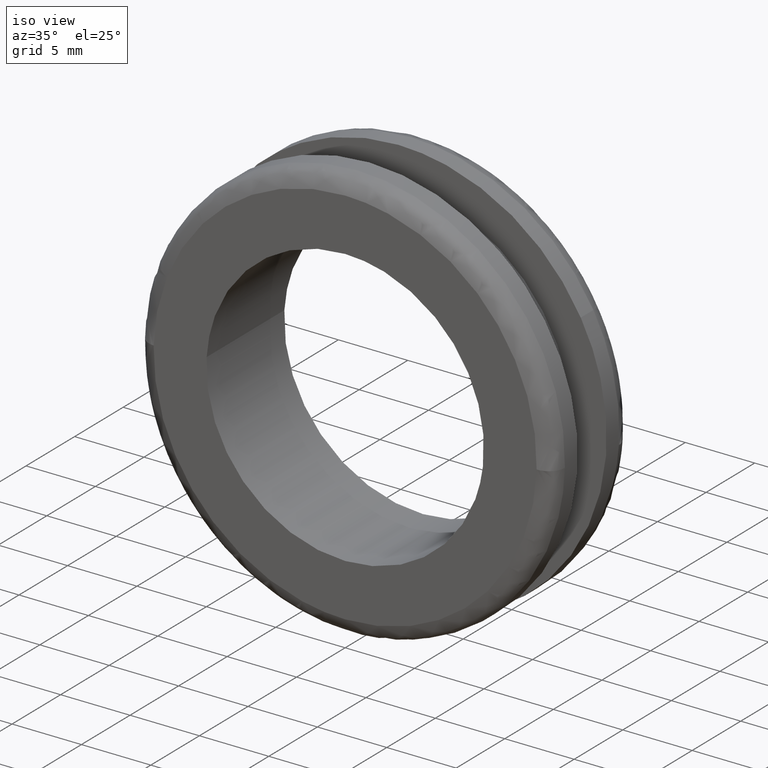
[diagram: clean part render]
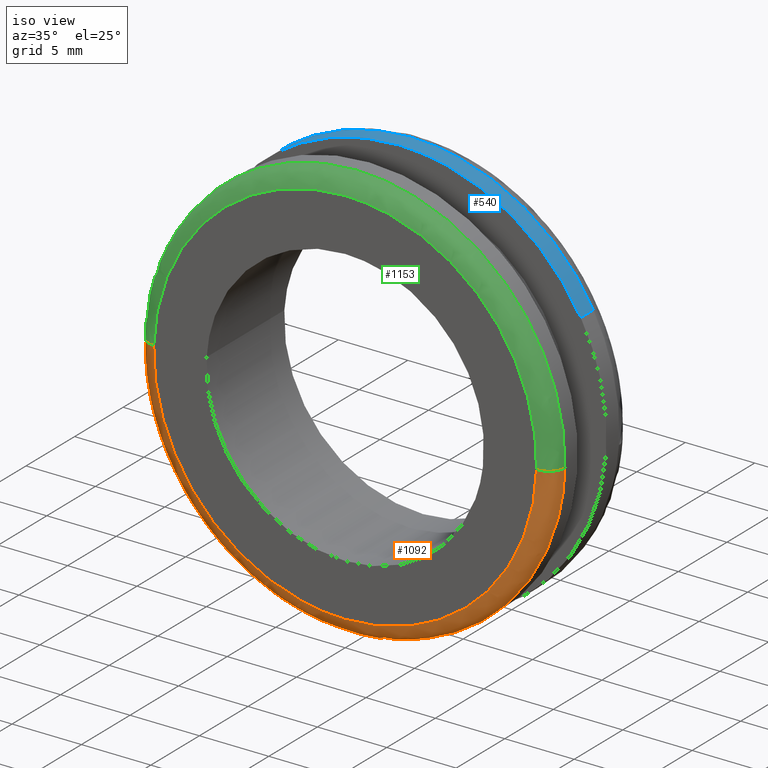
[diagram: same view with three faces highlighted in distinct colors, each labeled with its STEP entity id]
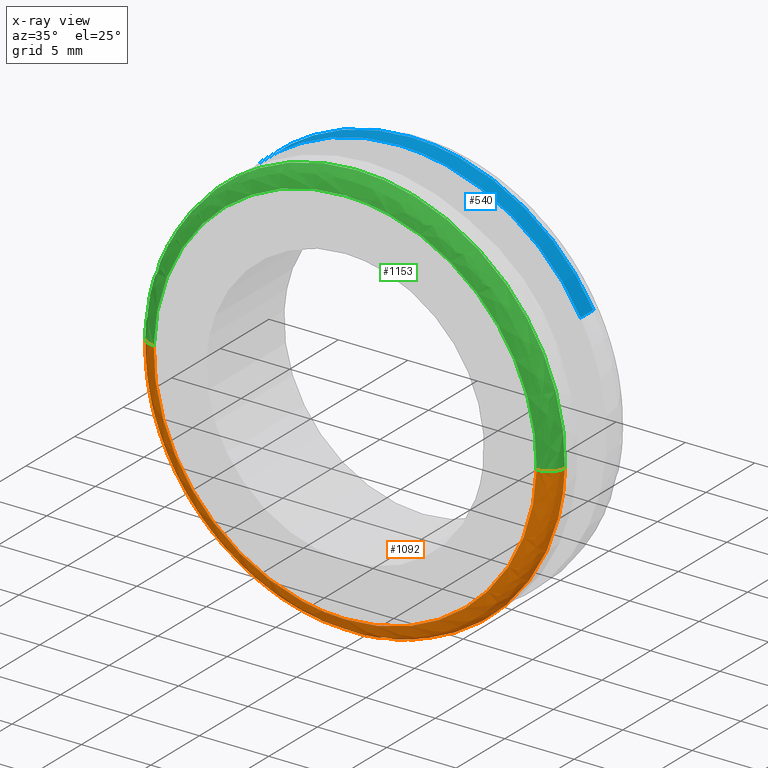
[diagram: x-ray of the same camera — body ghosted, the three highlighted faces saturated]
A machine part, iso view with three faces highlighted in distinct colors.
The next image is the same camera in x-ray (body ghosted, the three faces saturated) — at least one of them is partly hidden behind the body in this view.
Their STEP definitions:

[orange] entity #1092 — the highlighted face is a freeform B-spline surface patch.
#137=CARTESIAN_POINT('',(14.995262839249479,1.199999999917460,-0.376951431650665));
#138=VERTEX_POINT('',#137);
#154=CARTESIAN_POINT('',(0.0,1.200000000000000,-15.0));
#155=VERTEX_POINT('',#154);
#156=CARTESIAN_POINT('',(0.0,1.200000000000000,-15.0));
#157=CARTESIAN_POINT('',(14.627668142708558,1.200000000000000,-15.000000000000007));
#158=CARTESIAN_POINT('',(14.995262839249484,1.199999999917460,-0.376951431650665));
#166=(BOUNDED_CURVE()B_SPLINE_CURVE(2,(#156,#157,#158),.UNSPECIFIED.,.F.,.U.)B_SPLINE_CURVE_WITH_KNOTS((3,3),(0.0,0.245579891769793),.UNSPECIFIED.)CURVE()GEOMETRIC_REPRESENTATION_ITEM()RATIONAL_B_SPLINE_CURVE((1.0,0.712285260094744,0.989826157681544))REPRESENTATION_ITEM(''));
#167=EDGE_CURVE('',#155,#138,#166,.T.);
#169=CARTESIAN_POINT('',(-9.815094365530444,1.200000000000000,-11.343012060106970));
#170=VERTEX_POINT('',#169);
#171=CARTESIAN_POINT('',(-9.815094365530444,1.199999999999999,-11.343012060106965));
#172=CARTESIAN_POINT('',(-5.588822016142505,1.200000000000000,-15.000000000000005));
#173=CARTESIAN_POINT('',(0.0,1.200000000000000,-15.0));
#181=(BOUNDED_CURVE()B_SPLINE_CURVE(2,(#171,#172,#173),.UNSPECIFIED.,.F.,.U.)B_SPLINE_CURVE_WITH_KNOTS((3,3),(0.885882132988790,1.0),.UNSPECIFIED.)CURVE()GEOMETRIC_REPRESENTATION_ITEM()RATIONAL_B_SPLINE_CURVE((0.854663299542762,0.866302602427844,1.0))REPRESENTATION_ITEM(''));
#182=EDGE_CURVE('',#170,#155,#181,.T.);
#226=CARTESIAN_POINT('',(-14.995262839249479,1.199999999917460,0.376951431650666));
#227=VERTEX_POINT('',#226);
#228=CARTESIAN_POINT('',(-14.995262839249481,1.199999999917460,0.376951431650666));
#229=CARTESIAN_POINT('',(-15.000000000000002,1.200000000000000,0.188505481851298));
#230=CARTESIAN_POINT('',(-15.0,1.200000000000000,-1.928755E-016));
#231=CARTESIAN_POINT('',(-14.999999999999996,1.200000000000000,-6.856519991633413));
#232=CARTESIAN_POINT('',(-9.815094365530444,1.200000000000000,-11.343012060106965));
#240=(BOUNDED_CURVE()B_SPLINE_CURVE(2,(#228,#229,#230,#231,#232),.UNSPECIFIED.,.F.,.U.)B_SPLINE_CURVE_WITH_KNOTS((3,2,3),(0.745579891769793,0.750000000000000,0.885882132988790),.UNSPECIFIED.)CURVE()GEOMETRIC_REPRESENTATION_ITEM()RATIONAL_B_SPLINE_CURVE((0.989826157681544,0.994821521091804,1.0,0.840804178758702,0.854663299542762))REPRESENTATION_ITEM(''));
#241=EDGE_CURVE('',#227,#170,#240,.T.);
#1004=CARTESIAN_POINT('',(-14.992343321176696,1.283669157627015,0.376878040704598));
#1005=CARTESIAN_POINT('',(-15.369221361881287,1.283669157627015,-14.615465280472083));
#1006=CARTESIAN_POINT('',(-0.376878040704602,1.283669157627015,-14.992343321176696));
#1007=CARTESIAN_POINT('',(14.615465280472083,1.283669157627015,-15.369221361881289));
#1008=CARTESIAN_POINT('',(14.992343321176696,1.283669157627015,-0.376878040704603));
#1009=CARTESIAN_POINT('',(-15.088520613426805,-0.092802714251392,0.379295748776444));
#1010=CARTESIAN_POINT('',(-15.467816362203257,-0.092802714251392,-14.709224864650361));
#1011=CARTESIAN_POINT('',(-0.379295748776448,-0.092802714251392,-15.088520613426805));
#1012=CARTESIAN_POINT('',(14.709224864650361,-0.092802714251392,-15.467816362203257));
#1013=CARTESIAN_POINT('',(15.088520613426805,-0.092802714251392,-0.379295748776449));
#1014=CARTESIAN_POINT('',(-13.712447503820707,0.002889172482517,0.344703975742398));
#1015=CARTESIAN_POINT('',(-14.057151479563114,0.002889172482517,-13.367743528078305));
#1016=CARTESIAN_POINT('',(-0.344703975742402,0.002889172482517,-13.712447503820707));
#1017=CARTESIAN_POINT('',(13.367743528078305,0.002889172482517,-14.057151479563114));
#1018=CARTESIAN_POINT('',(13.712447503820707,0.002889172482517,-0.344703975742403));
#1026=(BOUNDED_SURFACE()B_SPLINE_SURFACE(2,2,((#1004,#1009,#1014),(#1005,#1010,#1015),(#1006,#1011,#1016),(#1007,#1012,#1017),(#1008,#1013,#1018)),.UNSPECIFIED.,.F.,.F.,.U.)B_SPLINE_SURFACE_WITH_KNOTS((3,2,3),(3,3),(0.0,24.847974998333068,49.695949996666130),(0.0,2.186844435827837),.UNSPECIFIED.)GEOMETRIC_REPRESENTATION_ITEM()RATIONAL_B_SPLINE_SURFACE(((0.910892988213902,0.599412927365441,0.915966586659385),(0.644098608901328,0.423848945670983,0.647686184767146),(0.910892988213902,0.599412927365441,0.915966586659385),(0.644098608901328,0.423848945670983,0.647686184767146),(0.910892988213902,0.599412927365441,0.915966586659385)))REPRESENTATION_ITEM('')SURFACE());
#1027=ORIENTED_EDGE('',*,*,#241,.T.);
#1028=ORIENTED_EDGE('',*,*,#182,.T.);
#1029=ORIENTED_EDGE('',*,*,#167,.T.);
#1030=CARTESIAN_POINT('',(13.795641812970359,-1.001942E-015,-0.346795317177242));
#1031=VERTEX_POINT('',#1030);
#1032=CARTESIAN_POINT('',(14.995262839249483,1.199999999917460,-0.376951431650665));
#1033=CARTESIAN_POINT('',(14.995262839084466,1.724079E-009,-0.376951431645913));
#1034=CARTESIAN_POINT('',(13.795641812970361,-1.001942E-015,-0.346795317177242));
#1042=(BOUNDED_CURVE()B_SPLINE_CURVE(2,(#1032,#1033,#1034),.UNSPECIFIED.,.F.,.U.)B_SPLINE_CURVE_WITH_KNOTS((3,3),(-1.723441281843132,-0.263586880414795),.UNSPECIFIED.)CURVE()GEOMETRIC_REPRESENTATION_ITEM()RATIONAL_B_SPLINE_CURVE((0.883897567088745,0.626638727524983,0.888510408529080))REPRESENTATION_ITEM(''));
#1043=EDGE_CURVE('',#138,#1031,#1042,.T.);
#1044=ORIENTED_EDGE('',*,*,#1043,.T.);
#1045=CARTESIAN_POINT('',(0.0,-2.534935E-015,-13.800000000000001));
#1046=VERTEX_POINT('',#1045);
#1047=CARTESIAN_POINT('',(0.0,-2.534935E-015,-13.800000000000001));
#1048=CARTESIAN_POINT('',(13.457454691219727,-2.534935E-015,-13.799999999999999));
#1049=CARTESIAN_POINT('',(13.795641812970366,-1.001942E-015,-0.346795317177242));
#1057=(BOUNDED_CURVE()B_SPLINE_CURVE(2,(#1047,#1048,#1049),.UNSPECIFIED.,.F.,.U.)B_SPLINE_CURVE_WITH_KNOTS((3,3),(0.0,0.245579891768856),.UNSPECIFIED.)CURVE()GEOMETRIC_REPRESENTATION_ITEM()RATIONAL_B_SPLINE_CURVE((1.0,0.712285260095842,0.989826157679425))REPRESENTATION_ITEM(''));
#1058=EDGE_CURVE('',#1046,#1031,#1057,.T.);
#1059=ORIENTED_EDGE('',*,*,#1058,.F.);
#1060=CARTESIAN_POINT('',(-13.795641812970359,-1.033180E-015,0.346795317177241));
#1061=VERTEX_POINT('',#1060);
#1062=CARTESIAN_POINT('',(-13.795641812970363,-1.033180E-015,0.346795317177241));
#1063=CARTESIAN_POINT('',(-13.799999999999995,-2.534935E-015,0.173425043340176));
#1064=CARTESIAN_POINT('',(-13.800000000000001,-2.534935E-015,-1.928755E-016));
#1065=CARTESIAN_POINT('',(-13.799999999999999,-2.534935E-015,-13.799999999999999));
#1066=CARTESIAN_POINT('',(0.0,-2.534935E-015,-13.800000000000001));
#1074=(BOUNDED_CURVE()B_SPLINE_CURVE(2,(#1062,#1063,#1064,#1065,#1066),.UNSPECIFIED.,.F.,.U.)B_SPLINE_CURVE_WITH_KNOTS((3,2,3),(0.745579891768856,0.750000000000000,1.0),.UNSPECIFIED.)CURVE()GEOMETRIC_REPRESENTATION_ITEM()RATIONAL_B_SPLINE_CURVE((0.989826157679425,0.994821521090705,1.0,0.707106781186548,1.0))REPRESENTATION_ITEM(''));
#1075=EDGE_CURVE('',#1061,#1046,#1074,.T.);
#1076=ORIENTED_EDGE('',*,*,#1075,.F.);
#1077=CARTESIAN_POINT('',(-14.995262839249481,1.199999999917460,0.376951431650666));
#1078=CARTESIAN_POINT('',(-14.995262839084466,1.724075E-009,0.376951431645915));
#1079=CARTESIAN_POINT('',(-13.795641812970365,-1.033180E-015,0.346795317177241));
#1087=(BOUNDED_CURVE()B_SPLINE_CURVE(2,(#1077,#1078,#1079),.UNSPECIFIED.,.F.,.U.)B_SPLINE_CURVE_WITH_KNOTS((3,3),(-1.723441281843132,-0.263586880414791),.UNSPECIFIED.)CURVE()GEOMETRIC_REPRESENTATION_ITEM()RATIONAL_B_SPLINE_CURVE((0.883897567088745,0.626638727524982,0.888510408529082))REPRESENTATION_ITEM(''));
#1088=EDGE_CURVE('',#227,#1061,#1087,.T.);
#1089=ORIENTED_EDGE('',*,*,#1088,.F.);
#1090=EDGE_LOOP('',(#1027,#1028,#1029,#1044,#1059,#1076,#1089));
#1091=FACE_OUTER_BOUND('',#1090,.T.);
#1092=ADVANCED_FACE('',(#1091),#1026,.T.);

[blue] entity #540 — the highlighted face is a freeform B-spline surface patch.
#446=CARTESIAN_POINT('',(13.124196411646949,6.832500000077928,7.263295983815689));
#447=CARTESIAN_POINT('',(12.262045365414053,6.832500000077928,8.821134146060496));
#448=CARTESIAN_POINT('',(11.059160052151860,6.832500000077928,10.133853114234901));
#449=CARTESIAN_POINT('',(0.925306937916956,6.832500000077928,21.193013166386756));
#450=CARTESIAN_POINT('',(-10.133853114234901,6.832500000077928,11.059160052151860));
#451=CARTESIAN_POINT('',(13.124196411646949,5.466687499997949,7.263295983815689));
#452=CARTESIAN_POINT('',(12.262045365414053,5.466687499997949,8.821134146060496));
#453=CARTESIAN_POINT('',(11.059160052151860,5.466687499997948,10.133853114234901));
#454=CARTESIAN_POINT('',(0.925306937916956,5.466687499997948,21.193013166386756));
#455=CARTESIAN_POINT('',(-10.133853114234901,5.466687499997948,11.059160052151860));
#463=(BOUNDED_SURFACE()B_SPLINE_SURFACE(2,1,((#446,#451),(#447,#452),(#448,#453),(#449,#454),(#450,#455)),.UNSPECIFIED.,.F.,.F.,.U.)B_SPLINE_SURFACE_WITH_KNOTS((3,2,3),(2,2),(0.0,3.976450198781717,28.829263941167412),(0.0,1.0),.UNSPECIFIED.)GEOMETRIC_REPRESENTATION_ITEM()RATIONAL_B_SPLINE_SURFACE(((0.921270302782944,0.921270302782944),(0.953137084989848,0.953137084989848),(1.0,1.0),(0.707106781186548,0.707106781186548),(1.0,1.0)))REPRESENTATION_ITEM('')SURFACE());
#464=CARTESIAN_POINT('',(13.124197754834460,6.800000000000095,7.263293556781960));
#465=VERTEX_POINT('',#464);
#466=CARTESIAN_POINT('',(0.0,6.800000000000000,15.0));
#467=VERTEX_POINT('',#466);
#468=CARTESIAN_POINT('',(13.124197754834459,6.800000000000095,7.263293556781960));
#469=CARTESIAN_POINT('',(8.842490704280804,6.800000000000002,14.999999999999998));
#470=CARTESIAN_POINT('',(0.0,6.800000000000000,15.0));
#478=(BOUNDED_CURVE()B_SPLINE_CURVE(2,(#468,#469,#470),.UNSPECIFIED.,.F.,.U.)B_SPLINE_CURVE_WITH_KNOTS((3,3),(0.332484260513294,0.500000000000000),.UNSPECIFIED.)CURVE()GEOMETRIC_REPRESENTATION_ITEM()RATIONAL_B_SPLINE_CURVE((0.870495160132448,0.803743103439291,1.0))REPRESENTATION_ITEM(''));
#479=EDGE_CURVE('',#465,#467,#478,.T.);
#480=ORIENTED_EDGE('',*,*,#479,.T.);
#481=CARTESIAN_POINT('',(-10.133852503868869,6.800000000020198,11.059160611448180));
#482=VERTEX_POINT('',#481);
#483=CARTESIAN_POINT('',(0.0,6.800000000000000,15.0));
#484=CARTESIAN_POINT('',(-5.833180024734737,6.800000000000001,15.0));
#485=CARTESIAN_POINT('',(-10.133852503868875,6.800000000020199,11.059160611448178));
#493=(BOUNDED_CURVE()B_SPLINE_CURVE(2,(#483,#484,#485),.UNSPECIFIED.,.F.,.U.)B_SPLINE_CURVE_WITH_KNOTS((3,3),(0.500000000000000,0.618415192420787),.UNSPECIFIED.)CURVE()GEOMETRIC_REPRESENTATION_ITEM()RATIONAL_B_SPLINE_CURVE((1.0,0.861267972541846,0.853959782894757))REPRESENTATION_ITEM(''));
#494=EDGE_CURVE('',#467,#482,#493,.T.);
#495=ORIENTED_EDGE('',*,*,#494,.T.);
#496=CARTESIAN_POINT('',(-10.133852520110439,5.499999999999900,11.059160596566571));
#497=VERTEX_POINT('',#496);
#498=CARTESIAN_POINT('',(-10.133852503868869,6.800000000020198,11.059160611448180));
#499=CARTESIAN_POINT('',(-10.133852520110439,5.499999999999900,11.059160596566571));
#500=QUASI_UNIFORM_CURVE('',1,(#498,#499),.UNSPECIFIED.,.F.,.U.);
#501=EDGE_CURVE('',#482,#497,#500,.T.);
#502=ORIENTED_EDGE('',*,*,#501,.T.);
#503=CARTESIAN_POINT('',(0.0,5.499999999999900,15.0));
#504=VERTEX_POINT('',#503);
#505=CARTESIAN_POINT('',(0.0,5.499999999999900,15.0));
#506=CARTESIAN_POINT('',(-5.833180050095272,5.499999999999901,14.999999999999996));
#507=CARTESIAN_POINT('',(-10.133852520110443,5.499999999999900,11.059160596566569));
#515=(BOUNDED_CURVE()B_SPLINE_CURVE(2,(#505,#506,#507),.UNSPECIFIED.,.F.,.U.)B_SPLINE_CURVE_WITH_KNOTS((3,3),(0.500000000000000,0.618415192864190),.UNSPECIFIED.)CURVE()GEOMETRIC_REPRESENTATION_ITEM()RATIONAL_B_SPLINE_CURVE((1.0,0.861267972022367,0.853959782840026))REPRESENTATION_ITEM(''));
#516=EDGE_CURVE('',#504,#497,#515,.T.);
#517=ORIENTED_EDGE('',*,*,#516,.F.);
#518=CARTESIAN_POINT('',(13.124197648995480,5.499999999999899,7.263293748024724));
#519=VERTEX_POINT('',#518);
#520=CARTESIAN_POINT('',(13.124197648995473,5.499999999999899,7.263293748024724));
#521=CARTESIAN_POINT('',(8.842490557013848,5.499999999999900,15.000000000000007));
#522=CARTESIAN_POINT('',(0.0,5.499999999999900,15.0));
#530=(BOUNDED_CURVE()B_SPLINE_CURVE(2,(#520,#521,#522),.UNSPECIFIED.,.F.,.U.)B_SPLINE_CURVE_WITH_KNOTS((3,3),(0.332484262755645,0.500000000000000),.UNSPECIFIED.)CURVE()GEOMETRIC_REPRESENTATION_ITEM()RATIONAL_B_SPLINE_CURVE((0.870495158345373,0.803743106066369,1.0))REPRESENTATION_ITEM(''));
#531=EDGE_CURVE('',#519,#504,#530,.T.);
#532=ORIENTED_EDGE('',*,*,#531,.F.);
#533=CARTESIAN_POINT('',(13.124197754834460,6.800000000000095,7.263293556781960));
#534=CARTESIAN_POINT('',(13.124197648995480,5.499999999999899,7.263293748024724));
#535=QUASI_UNIFORM_CURVE('',1,(#533,#534),.UNSPECIFIED.,.F.,.U.);
#536=EDGE_CURVE('',#465,#519,#535,.T.);
#537=ORIENTED_EDGE('',*,*,#536,.F.);
#538=EDGE_LOOP('',(#480,#495,#502,#517,#532,#537));
#539=FACE_OUTER_BOUND('',#538,.T.);
#540=ADVANCED_FACE('',(#539),#463,.T.);

[green] entity #1153 — the highlighted face is a freeform B-spline surface patch.
#115=CARTESIAN_POINT('',(-10.133852493038910,1.199999999977785,11.059160621372980));
#116=VERTEX_POINT('',#115);
#122=CARTESIAN_POINT('',(0.0,1.200000000000000,15.0));
#123=VERTEX_POINT('',#122);
#124=CARTESIAN_POINT('',(0.0,1.200000000000000,15.0));
#125=CARTESIAN_POINT('',(-5.833180007824203,1.200000000000000,15.0));
#126=CARTESIAN_POINT('',(-10.133852493038908,1.199999999977785,11.059160621372975));
#134=(BOUNDED_CURVE()B_SPLINE_CURVE(2,(#124,#125,#126),.UNSPECIFIED.,.F.,.U.)B_SPLINE_CURVE_WITH_KNOTS((3,3),(0.500000000000000,0.618415192125123),.UNSPECIFIED.)CURVE()GEOMETRIC_REPRESENTATION_ITEM()RATIONAL_B_SPLINE_CURVE((1.0,0.861267972888237,0.853959782931252))REPRESENTATION_ITEM(''));
#135=EDGE_CURVE('',#123,#116,#134,.T.);
#137=CARTESIAN_POINT('',(14.995262839249479,1.199999999917460,-0.376951431650665));
#138=VERTEX_POINT('',#137);
#139=CARTESIAN_POINT('',(14.995262839249481,1.199999999917460,-0.376951431650665));
#140=CARTESIAN_POINT('',(15.000000000000002,1.200000000000000,-0.188505481851297));
#141=CARTESIAN_POINT('',(15.0,1.200000000000000,-1.928755E-016));
#142=CARTESIAN_POINT('',(14.999999999999996,1.200000000000000,14.999999999999996));
#143=CARTESIAN_POINT('',(0.0,1.200000000000000,15.0));
#151=(BOUNDED_CURVE()B_SPLINE_CURVE(2,(#139,#140,#141,#142,#143),.UNSPECIFIED.,.F.,.U.)B_SPLINE_CURVE_WITH_KNOTS((3,2,3),(0.245579891769794,0.250000000000000,0.500000000000000),.UNSPECIFIED.)CURVE()GEOMETRIC_REPRESENTATION_ITEM()RATIONAL_B_SPLINE_CURVE((0.989826157681544,0.994821521091804,1.0,0.707106781186547,1.0))REPRESENTATION_ITEM(''));
#152=EDGE_CURVE('',#138,#123,#151,.T.);
#226=CARTESIAN_POINT('',(-14.995262839249479,1.199999999917460,0.376951431650666));
#227=VERTEX_POINT('',#226);
#243=CARTESIAN_POINT('',(-10.133852493038908,1.199999999977785,11.059160621372975));
#244=CARTESIAN_POINT('',(-14.835023439329238,1.199999999953440,6.751332100486773));
#245=CARTESIAN_POINT('',(-14.995262839249481,1.199999999917460,0.376951431650666));
#253=(BOUNDED_CURVE()B_SPLINE_CURVE(2,(#243,#244,#245),.UNSPECIFIED.,.F.,.U.)B_SPLINE_CURVE_WITH_KNOTS((3,3),(0.618415192125124,0.745579891769794),.UNSPECIFIED.)CURVE()GEOMETRIC_REPRESENTATION_ITEM()RATIONAL_B_SPLINE_CURVE((0.853959782931252,0.846111602607868,0.989826157681545))REPRESENTATION_ITEM(''));
#254=EDGE_CURVE('',#116,#227,#253,.T.);
#1030=CARTESIAN_POINT('',(13.795641812970359,-1.001942E-015,-0.346795317177242));
#1031=VERTEX_POINT('',#1030);
#1032=CARTESIAN_POINT('',(14.995262839249483,1.199999999917460,-0.376951431650665));
#1033=CARTESIAN_POINT('',(14.995262839084466,1.724079E-009,-0.376951431645913));
#1034=CARTESIAN_POINT('',(13.795641812970361,-1.001942E-015,-0.346795317177242));
#1042=(BOUNDED_CURVE()B_SPLINE_CURVE(2,(#1032,#1033,#1034),.UNSPECIFIED.,.F.,.U.)B_SPLINE_CURVE_WITH_KNOTS((3,3),(-1.723441281843132,-0.263586880414795),.UNSPECIFIED.)CURVE()GEOMETRIC_REPRESENTATION_ITEM()RATIONAL_B_SPLINE_CURVE((0.883897567088745,0.626638727524983,0.888510408529080))REPRESENTATION_ITEM(''));
#1043=EDGE_CURVE('',#138,#1031,#1042,.T.);
#1060=CARTESIAN_POINT('',(-13.795641812970359,-1.033180E-015,0.346795317177241));
#1061=VERTEX_POINT('',#1060);
#1077=CARTESIAN_POINT('',(-14.995262839249481,1.199999999917460,0.376951431650666));
#1078=CARTESIAN_POINT('',(-14.995262839084466,1.724075E-009,0.376951431645915));
#1079=CARTESIAN_POINT('',(-13.795641812970365,-1.033180E-015,0.346795317177241));
#1087=(BOUNDED_CURVE()B_SPLINE_CURVE(2,(#1077,#1078,#1079),.UNSPECIFIED.,.F.,.U.)B_SPLINE_CURVE_WITH_KNOTS((3,3),(-1.723441281843132,-0.263586880414791),.UNSPECIFIED.)CURVE()GEOMETRIC_REPRESENTATION_ITEM()RATIONAL_B_SPLINE_CURVE((0.883897567088745,0.626638727524982,0.888510408529082))REPRESENTATION_ITEM(''));
#1088=EDGE_CURVE('',#227,#1061,#1087,.T.);
#1093=CARTESIAN_POINT('',(14.992343321176696,1.283669157627015,-0.376878040704596));
#1094=CARTESIAN_POINT('',(15.369221361881282,1.283669157627015,14.615465280472090));
#1095=CARTESIAN_POINT('',(0.376878040704597,1.283669157627015,14.992343321176696));
#1096=CARTESIAN_POINT('',(-14.615465280472090,1.283669157627015,15.369221361881284));
#1097=CARTESIAN_POINT('',(-14.992343321176696,1.283669157627015,0.376878040704598));
#1098=CARTESIAN_POINT('',(15.088520613426805,-0.092802714251392,-0.379295748776442));
#1099=CARTESIAN_POINT('',(15.467816362203250,-0.092802714251392,14.709224864650368));
#1100=CARTESIAN_POINT('',(0.379295748776443,-0.092802714251392,15.088520613426805));
#1101=CARTESIAN_POINT('',(-14.709224864650368,-0.092802714251392,15.467816362203250));
#1102=CARTESIAN_POINT('',(-15.088520613426805,-0.092802714251392,0.379295748776444));
#1103=CARTESIAN_POINT('',(13.712447503820707,0.002889172482517,-0.344703975742397));
#1104=CARTESIAN_POINT('',(14.057151479563103,0.002889172482517,13.367743528078311));
#1105=CARTESIAN_POINT('',(0.344703975742398,0.002889172482517,13.712447503820707));
#1106=CARTESIAN_POINT('',(-13.367743528078311,0.002889172482517,14.057151479563103));
#1107=CARTESIAN_POINT('',(-13.712447503820707,0.002889172482517,0.344703975742398));
#1115=(BOUNDED_SURFACE()B_SPLINE_SURFACE(2,2,((#1093,#1098,#1103),(#1094,#1099,#1104),(#1095,#1100,#1105),(#1096,#1101,#1106),(#1097,#1102,#1107)),.UNSPECIFIED.,.F.,.F.,.U.)B_SPLINE_SURFACE_WITH_KNOTS((3,2,3),(3,3),(0.0,24.847974998333068,49.695949996666130),(0.0,2.186844435827837),.UNSPECIFIED.)GEOMETRIC_REPRESENTATION_ITEM()RATIONAL_B_SPLINE_SURFACE(((0.910892988213902,0.599412927365441,0.915966586659385),(0.644098608901328,0.423848945670983,0.647686184767146),(0.910892988213902,0.599412927365441,0.915966586659385),(0.644098608901328,0.423848945670983,0.647686184767146),(0.910892988213902,0.599412927365441,0.915966586659385)))REPRESENTATION_ITEM('')SURFACE());
#1116=ORIENTED_EDGE('',*,*,#135,.T.);
#1117=ORIENTED_EDGE('',*,*,#254,.T.);
#1118=ORIENTED_EDGE('',*,*,#1088,.T.);
#1119=CARTESIAN_POINT('',(0.0,-2.534935E-015,13.800000000000001));
#1120=VERTEX_POINT('',#1119);
#1121=CARTESIAN_POINT('',(0.0,-2.534935E-015,13.800000000000001));
#1122=CARTESIAN_POINT('',(-13.457454691219809,-2.534935E-015,13.799999999999999));
#1123=CARTESIAN_POINT('',(-13.795641812970365,-1.033180E-015,0.346795317177241));
#1131=(BOUNDED_CURVE()B_SPLINE_CURVE(2,(#1121,#1122,#1123),.UNSPECIFIED.,.F.,.U.)B_SPLINE_CURVE_WITH_KNOTS((3,3),(0.500000000000000,0.745579891768857),.UNSPECIFIED.)CURVE()GEOMETRIC_REPRESENTATION_ITEM()RATIONAL_B_SPLINE_CURVE((1.0,0.712285260095841,0.989826157679427))REPRESENTATION_ITEM(''));
#1132=EDGE_CURVE('',#1120,#1061,#1131,.T.);
#1133=ORIENTED_EDGE('',*,*,#1132,.F.);
#1134=CARTESIAN_POINT('',(13.795641812970366,-1.001942E-015,-0.346795317177242));
#1135=CARTESIAN_POINT('',(13.799999999999997,-2.534935E-015,-0.173425043340179));
#1136=CARTESIAN_POINT('',(13.800000000000001,-2.534935E-015,-1.928755E-016));
#1137=CARTESIAN_POINT('',(13.799999999999999,-2.534935E-015,13.799999999999999));
#1138=CARTESIAN_POINT('',(0.0,-2.534935E-015,13.800000000000001));
#1146=(BOUNDED_CURVE()B_SPLINE_CURVE(2,(#1134,#1135,#1136,#1137,#1138),.UNSPECIFIED.,.F.,.U.)B_SPLINE_CURVE_WITH_KNOTS((3,2,3),(0.245579891768856,0.250000000000000,0.500000000000000),.UNSPECIFIED.)CURVE()GEOMETRIC_REPRESENTATION_ITEM()RATIONAL_B_SPLINE_CURVE((0.989826157679425,0.994821521090705,1.0,0.707106781186548,1.0))REPRESENTATION_ITEM(''));
#1147=EDGE_CURVE('',#1031,#1120,#1146,.T.);
#1148=ORIENTED_EDGE('',*,*,#1147,.F.);
#1149=ORIENTED_EDGE('',*,*,#1043,.F.);
#1150=ORIENTED_EDGE('',*,*,#152,.T.);
#1151=EDGE_LOOP('',(#1116,#1117,#1118,#1133,#1148,#1149,#1150));
#1152=FACE_OUTER_BOUND('',#1151,.T.);
#1153=ADVANCED_FACE('',(#1152),#1115,.T.);